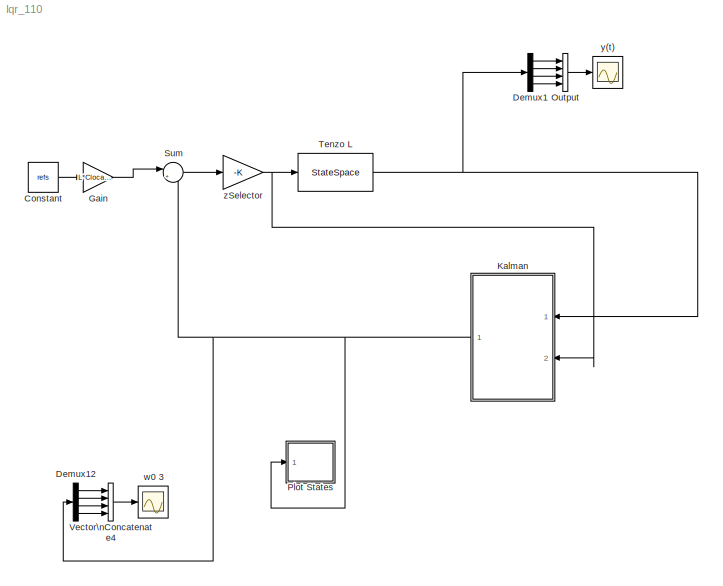
MODEL lqr_110
KIND model
BLOCK [Constant] Constant
  SID = 32
  Value = refs
BLOCK [Demux] Demux1
  DisplayOption = bar
  Ports = [1, 4]
  SID = 1
BLOCK [Demux] Demux12
  DisplayOption = bar
  Ports = [1, 4]
  SID = 2
BLOCK [Gain] Gain
  Gain = L*ClocalMin
  OutDataTypeStr = Inherit: Inherit via internal rule
  ParamDataTypeStr = Inherit: Inherit via internal rule
  SID = 33
  SaturateOnIntegerOverflow = off
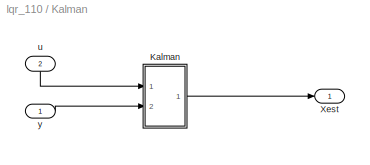
BLOCK [SubSystem] Kalman
  Ports = [2, 1]
  RequestExecContextInheritance = off
  SID = 3
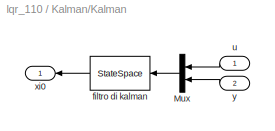
BLOCK [SubSystem] Kalman/Kalman
  Ports = [2, 1]
  RequestExecContextInheritance = off
  SID = 6
BLOCK [Mux] Kalman/Kalman/Mux
  DisplayOption = bar
  Inputs = [4 4]
  Ports = [2, 1]
  SID = 9
BLOCK [StateSpace] Kalman/Kalman/filtro di kalman
  A = Aoss
  B = Boss
  C = Coss
  D = Doss
  Ports = [1, 1]
  SID = 10
  X0 = [0 0 0 0 0 0 0 0]
BLOCK [Inport] Kalman/Kalman/u
  IconDisplay = Port number
  SID = 7
BLOCK [Outport] Kalman/Kalman/xi0
  IconDisplay = Port number
  SID = 11
BLOCK [Inport] Kalman/Kalman/y
  IconDisplay = Port number
  Port = 2
  SID = 8
BLOCK [Outport] Kalman/Xest
  IconDisplay = Port number
  SID = 12
BLOCK [Inport] Kalman/u
  IconDisplay = Port number
  Port = 2
  SID = 5
BLOCK [Inport] Kalman/y
  IconDisplay = Port number
  SID = 4
BLOCK [Concatenate] Output
  NumInputs = 4
  Ports = [4, 1]
  SID = 13
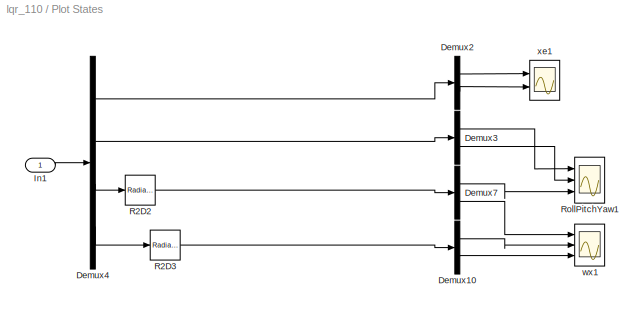
BLOCK [SubSystem] Plot States
  Ports = [1]
  RequestExecContextInheritance = off
  SID = 14
BLOCK [Demux] Plot States/Demux10
  DisplayOption = bar
  Outputs = 2
  Ports = [1, 2]
  SID = 16
BLOCK [Demux] Plot States/Demux2
  DisplayOption = bar
  Outputs = 2
  Ports = [1, 2]
  SID = 17
BLOCK [Demux] Plot States/Demux3
  DisplayOption = bar
  Outputs = 2
  Ports = [1, 2]
  SID = 18
BLOCK [Demux] Plot States/Demux4
  DisplayOption = bar
  Ports = [1, 4]
  SID = 19
BLOCK [Demux] Plot States/Demux7
  DisplayOption = bar
  Outputs = 2
  Ports = [1, 2]
  SID = 20
BLOCK [Inport] Plot States/In1
  IconDisplay = Port number
  SID = 15
BLOCK [Reference] Plot States/R2D2  REF=simulink_extras/Transformations/Radians\nto Degrees
  Ports = [1, 1]
  SID = 21
  SourceBlock = simulink_extras/Transformations/Radians\nto Degrees
  SourceType = RadiansToDegrees
BLOCK [Reference] Plot States/R2D3  REF=simulink_extras/Transformations/Radians\nto Degrees
  Ports = [1, 1]
  SID = 22
  SourceBlock = simulink_extras/Transformations/Radians\nto Degrees
  SourceType = RadiansToDegrees
BLOCK [Scope] Plot States/RollPitchYaw1
  DataFormat = StructureWithTime
  Floating = off
  NumInputPorts = 3
  Ports = [3]
  SID = 23
  SampleTime = 0
  SaveName = ScopeData21
  YMax = 5~5~5
  YMin = -5~-5~-5
  ZoomMode = yonly
BLOCK [Scope] Plot States/wx1
  DataFormat = StructureWithTime
  Floating = off
  NumInputPorts = 3
  Ports = [3]
  SID = 24
  SampleTime = 0
  SaveName = ScopeData24
  TimeRange = 15
  YMax = 5~5~5
  YMin = -5~-5~-5
BLOCK [Scope] Plot States/xe1
  DataFormat = StructureWithTime
  Floating = off
  LimitDataPoints = off
  NumInputPorts = 2
  Ports = [2]
  SID = 25
  SampleTime = 0
  SaveName = ScopeData25
  TimeRange = 3
  YMax = 3e-05~3e-05
  YMin = 1.6e-05~1.6e-05
BLOCK [Sum] Sum
  IconShape = round
  InputSameDT = off
  Inputs = |++
  OutDataTypeStr = Inherit: Inherit via internal rule
  Ports = [2, 1]
  SID = 31
  SaturateOnIntegerOverflow = off
BLOCK [StateSpace] Tenzo L
  A = AMin
  B = BMin
  C = ClocalMin
  D = D
  Ports = [1, 1]
  SID = 26
  X0 = [10 0 10 0 180 0 0 0 ]
BLOCK [Concatenate] Vector\nConcatenate4
  NumInputs = 4
  Ports = [4, 1]
  SID = 27
BLOCK [Scope] w0  3
  DataFormat = StructureWithTime
  Floating = off
  LimitDataPoints = off
  NumInputPorts = 1
  Ports = [1]
  SID = 28
  SampleTime = 0
  SaveName = ScopeData36
  YMax = 7000
  YMin = 2500
BLOCK [Scope] y(t)
  DataFormat = StructureWithTime
  Floating = off
  LimitDataPoints = off
  NumInputPorts = 1
  Ports = [1]
  SID = 29
  SampleTime = 0
  SaveName = ScopeData20
  YMax = 7000
  YMin = 2500
BLOCK [Gain] zSelector
  Gain = -K
  Multiplication = Matrix(K*u)
  OutDataTypeStr = Inherit: Inherit via internal rule
  ParamDataTypeStr = Inherit: Inherit via internal rule
  SID = 30
  SaturateOnIntegerOverflow = off
LINE Constant:1 -> Gain:1
LINE Demux12:1 -> Vector\nConcatenate4:1
LINE Demux12:2 -> Vector\nConcatenate4:2
LINE Demux12:3 -> Vector\nConcatenate4:3
LINE Demux12:4 -> Vector\nConcatenate4:4
LINE Demux1:1 -> Output:1
LINE Demux1:2 -> Output:2
LINE Demux1:3 -> Output:3
LINE Demux1:4 -> Output:4
LINE Gain:1 -> Sum:1
LINE Kalman/Kalman/Mux:1 -> Kalman/Kalman/filtro di kalman:1
LINE Kalman/Kalman/filtro di kalman:1 -> Kalman/Kalman/xi0:1
LINE Kalman/Kalman/u:1 -> Kalman/Kalman/Mux:1
LINE Kalman/Kalman/y:1 -> Kalman/Kalman/Mux:2
LINE Kalman/Kalman:1 -> Kalman/Xest:1
LINE Kalman/u:1 -> Kalman/Kalman:1
LINE Kalman/y:1 -> Kalman/Kalman:2
NET Kalman:1 -> Demux12:1, Plot States:1, Sum:2
LINE Output:1 -> y(t):1
LINE Plot States/Demux10:1 -> Plot States/wx1:2
LINE Plot States/Demux10:2 -> Plot States/wx1:3
LINE Plot States/Demux2:1 -> Plot States/xe1:1
LINE Plot States/Demux2:2 -> Plot States/xe1:2
LINE Plot States/Demux3:1 -> Plot States/RollPitchYaw1:1
LINE Plot States/Demux3:2 -> Plot States/RollPitchYaw1:2
LINE Plot States/Demux4:1 -> Plot States/Demux2:1
LINE Plot States/Demux4:2 -> Plot States/Demux3:1
LINE Plot States/Demux4:3 -> Plot States/R2D2:1
LINE Plot States/Demux4:4 -> Plot States/R2D3:1
LINE Plot States/Demux7:1 -> Plot States/RollPitchYaw1:3
LINE Plot States/Demux7:2 -> Plot States/wx1:1
LINE Plot States/In1:1 -> Plot States/Demux4:1
LINE Plot States/R2D2:1 -> Plot States/Demux7:1
LINE Plot States/R2D3:1 -> Plot States/Demux10:1
LINE Sum:1 -> zSelector:1
NET Tenzo L:1 -> Demux1:1, Kalman:1
LINE Vector\nConcatenate4:1 -> w0  3:1
NET zSelector:1 -> Kalman:2, Tenzo L:1
note: NET lines group one-source signal fan-out (src -> all destinations, sorted); 1:1 wires keep LINE
